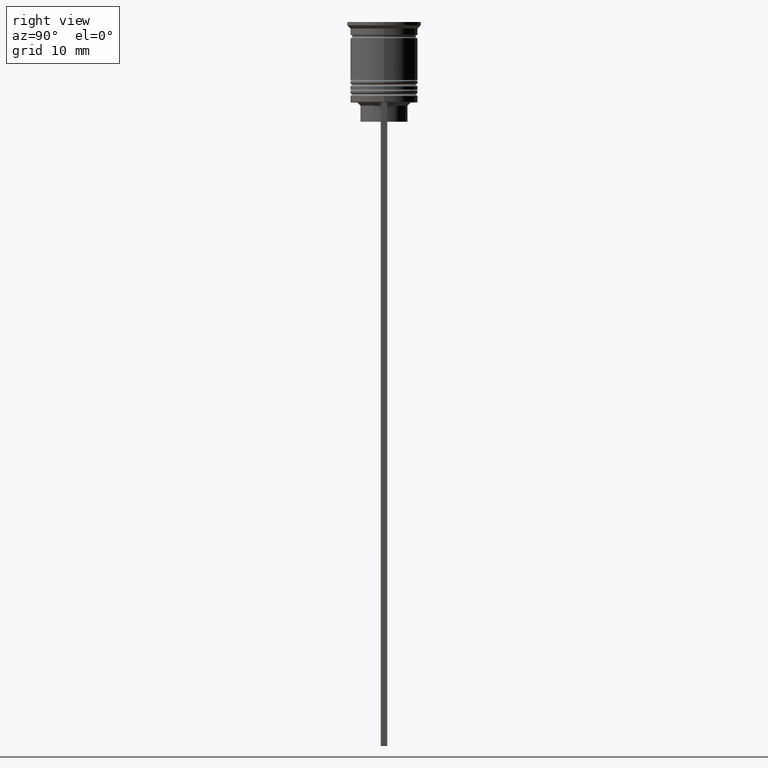
[diagram: clean part render]
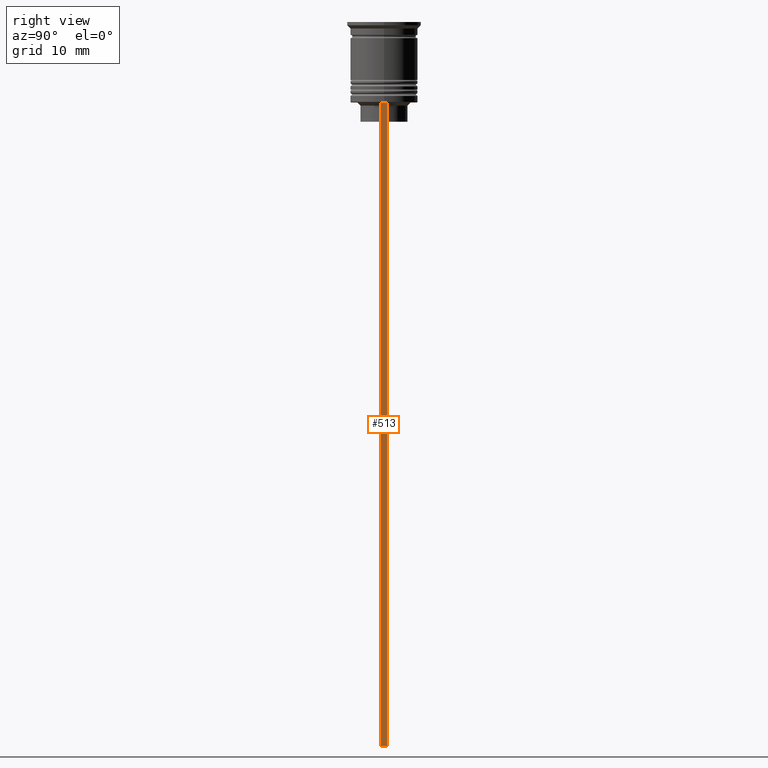
[diagram: same view with one face highlighted and labeled with its STEP entity id]
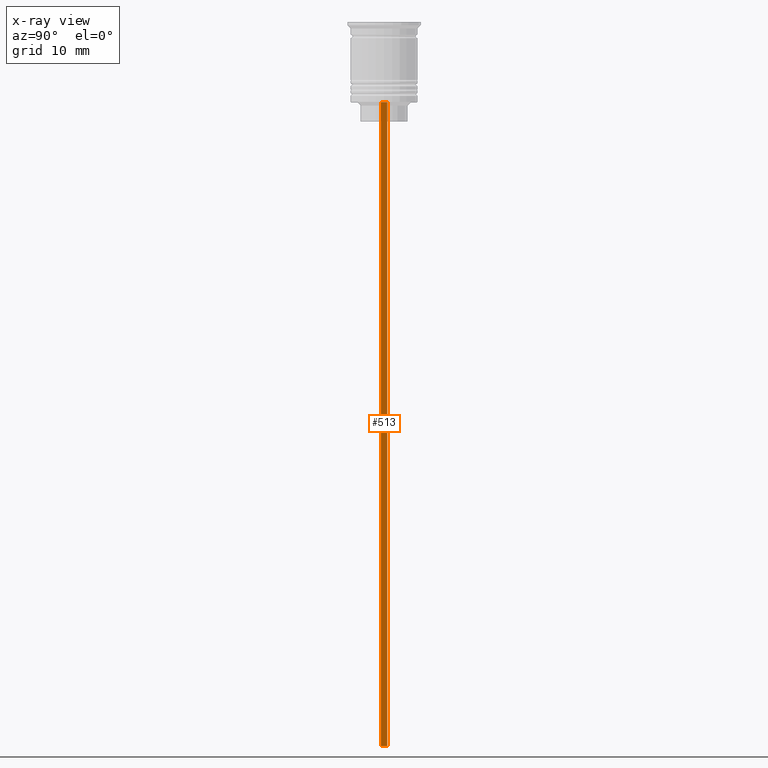
[diagram: x-ray of the same camera — body ghosted, the highlighted face saturated]
A machine part, right view. The second image highlights one B-rep face of the part: STEP entity #513.
The next image is the same camera in x-ray: the body ghosted, the highlighted face saturated — about 0% of this face is hidden behind the body in this view.
In plain terms, the highlighted planar face has unit normal (-1, 0, 0).
Its self-contained STEP definition (entity closure, byte-faithful):
#116 = ORIENTED_EDGE ( 'NONE', *, *, #522, .T. ) ;
#146 = FACE_OUTER_BOUND ( 'NONE', #1666, .T. ) ;
#232 = CARTESIAN_POINT ( 'NONE',  ( 5.000000000000000000, -0.5000000000000008882, -12.50000000000000000 ) ) ;
#344 = DIRECTION ( 'NONE',  ( 0.000000000000000000, 0.000000000000000000, -1.000000000000000000 ) ) ;
#349 = VERTEX_POINT ( 'NONE', #1525 ) ;
#359 = VECTOR ( 'NONE', #1040, 1000.000000000000000 ) ;
#369 = VERTEX_POINT ( 'NONE', #2260 ) ;
#430 = VECTOR ( 'NONE', #344, 1000.000000000000000 ) ;
#513 = ADVANCED_FACE ( 'NONE', ( #146 ), #1231, .F. ) ;
#522 = EDGE_CURVE ( 'NONE', #672, #1757, #678, .T. ) ;
#525 = CARTESIAN_POINT ( 'NONE',  ( 5.000000000000000000, 0.4999999999999991673, -2.450124378879110054 ) ) ;
#553 = EDGE_CURVE ( 'NONE', #369, #349, #1770, .T. ) ;
#582 = DIRECTION ( 'NONE',  ( 0.000000000000000000, 1.000000000000000000, 0.000000000000000000 ) ) ;
#633 = LINE ( 'NONE', #1363, #359 ) ;
#672 = VERTEX_POINT ( 'NONE', #232 ) ;
#678 = LINE ( 'NONE', #1971, #430 ) ;
#798 = ORIENTED_EDGE ( 'NONE', *, *, #1102, .T. ) ;
#869 = EDGE_CURVE ( 'NONE', #369, #672, #633, .T. ) ;
#1040 = DIRECTION ( 'NONE',  ( 0.000000000000000000, -1.000000000000000000, 0.000000000000000000 ) ) ;
#1078 = CARTESIAN_POINT ( 'NONE',  ( 5.000000000000000000, -0.5000000000000008882, -2.450124378879110054 ) ) ;
#1102 = EDGE_CURVE ( 'NONE', #1757, #349, #2051, .T. ) ;
#1177 = ORIENTED_EDGE ( 'NONE', *, *, #869, .T. ) ;
#1180 = AXIS2_PLACEMENT_3D ( 'NONE', #1078, #1624, #1778 ) ;
#1231 = PLANE ( 'NONE',  #1180 ) ;
#1242 = ORIENTED_EDGE ( 'NONE', *, *, #553, .F. ) ;
#1255 = DIRECTION ( 'NONE',  ( 0.000000000000000000, 0.000000000000000000, -1.000000000000000000 ) ) ;
#1341 = VECTOR ( 'NONE', #1255, 1000.000000000000000 ) ;
#1363 = CARTESIAN_POINT ( 'NONE',  ( 5.000000000000000000, -0.5000000000000008882, -12.50000000000000000 ) ) ;
#1370 = CARTESIAN_POINT ( 'NONE',  ( 5.000000000000000000, -0.5000000000000008882, -112.5000000000000000 ) ) ;
#1459 = CARTESIAN_POINT ( 'NONE',  ( 5.000000000000000000, -0.5000000000000008882, -112.5000000000000000 ) ) ;
#1525 = CARTESIAN_POINT ( 'NONE',  ( 5.000000000000000000, 0.4999999999999991673, -112.5000000000000000 ) ) ;
#1624 = DIRECTION ( 'NONE',  ( -1.000000000000000000, 0.000000000000000000, 0.000000000000000000 ) ) ;
#1666 = EDGE_LOOP ( 'NONE', ( #1242, #1177, #116, #798 ) ) ;
#1757 = VERTEX_POINT ( 'NONE', #1370 ) ;
#1770 = LINE ( 'NONE', #525, #1341 ) ;
#1778 = DIRECTION ( 'NONE',  ( 0.000000000000000000, 0.000000000000000000, 1.000000000000000000 ) ) ;
#1971 = CARTESIAN_POINT ( 'NONE',  ( 5.000000000000000000, -0.5000000000000008882, -2.450124378879110054 ) ) ;
#2051 = LINE ( 'NONE', #1459, #2206 ) ;
#2206 = VECTOR ( 'NONE', #582, 1000.000000000000000 ) ;
#2260 = CARTESIAN_POINT ( 'NONE',  ( 5.000000000000000000, 0.4999999999999991673, -12.50000000000000000 ) ) ;